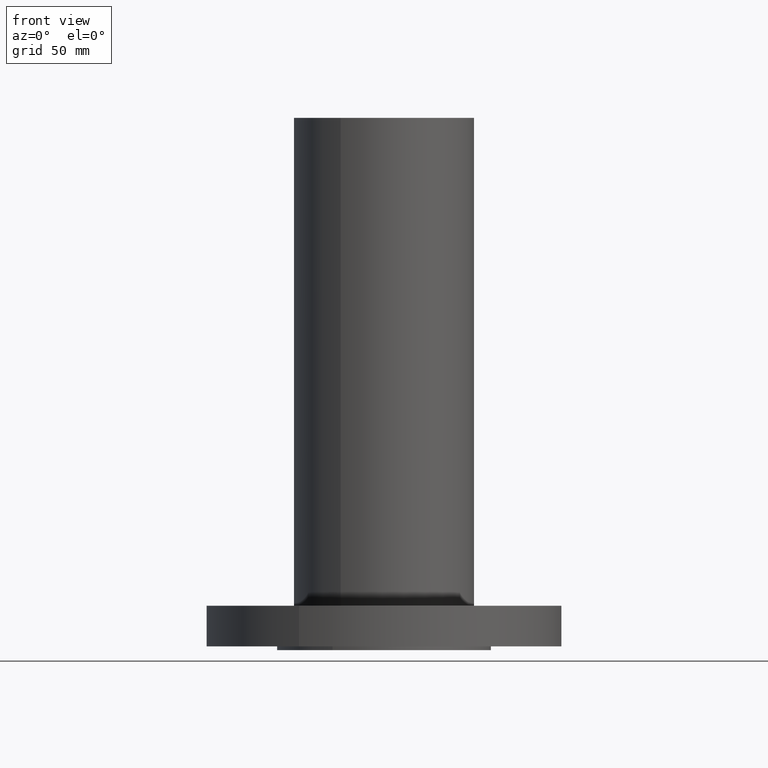
[diagram: clean part render]
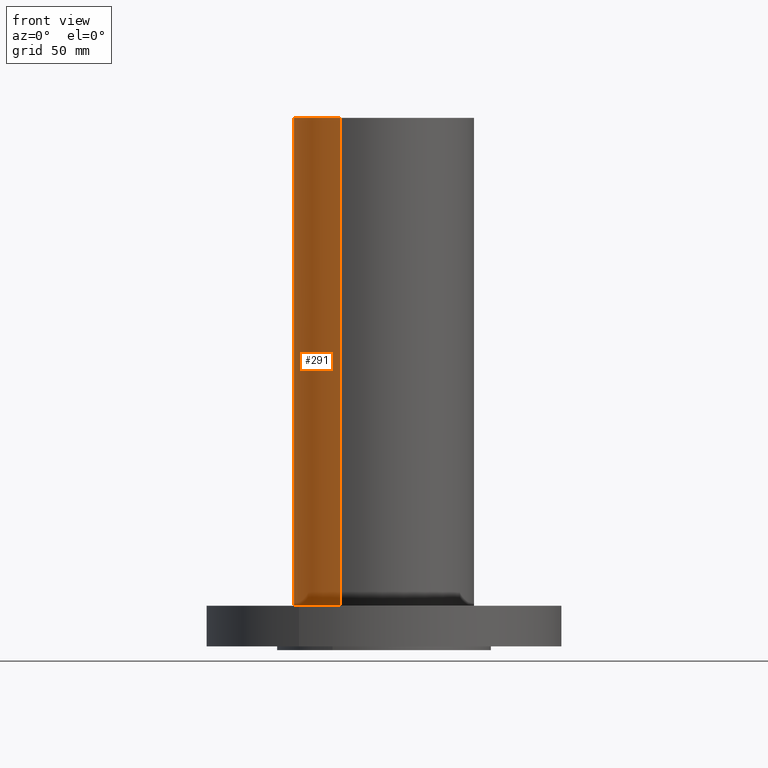
[diagram: same view with one face highlighted and labeled with its STEP entity id]
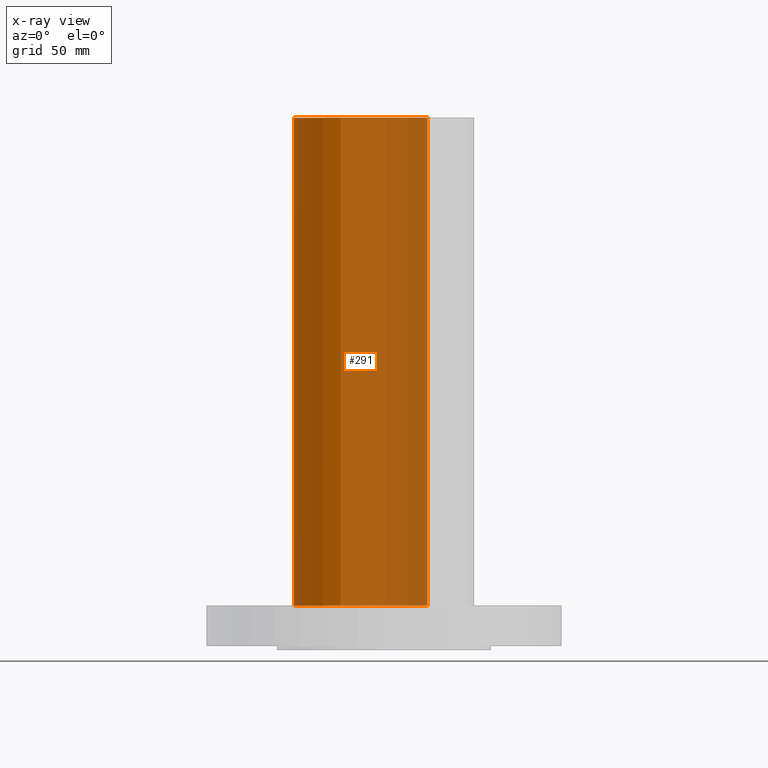
[diagram: x-ray of the same camera — body ghosted, the highlighted face saturated]
A machine part, front view. The second image highlights one B-rep face of the part: STEP entity #291.
The next image is the same camera in x-ray: the body ghosted, the highlighted face saturated — about 65% of this face is hidden behind the body in this view.
In plain terms, the highlighted cylindrical surface (partial cylindrical patch) has radius 38.862 mm, axis along (0, 0, -1).
Its self-contained STEP definition (entity closure, byte-faithful):
#238=AXIS2_PLACEMENT_3D('Cylinder Axis2P3D',#235,#236,#237) ;
#277=AXIS2_PLACEMENT_3D('Circle Axis2P3D',#275,#276,$) ;
#282=AXIS2_PLACEMENT_3D('Circle Axis2P3D',#280,#281,$) ;
#235=CARTESIAN_POINT('Axis2P3D Location',(0.,0.,4.43750000002)) ;
#244=CARTESIAN_POINT('Vertex',(0.733521074067,1.3427013197,0.687500000003)) ;
#246=CARTESIAN_POINT('Vertex',(-0.733521074067,-1.3427013197,0.687500000003)) ;
#249=CARTESIAN_POINT('Line Origine',(0.733521074067,1.3427013197,4.81250000002)) ;
#253=CARTESIAN_POINT('Vertex',(0.733521074067,1.3427013197,8.93750000004)) ;
#260=CARTESIAN_POINT('Vertex',(-0.733521074067,-1.3427013197,8.93750000004)) ;
#263=CARTESIAN_POINT('Line Origine',(-0.733521074067,-1.3427013197,4.81250000002)) ;
#275=CARTESIAN_POINT('Axis2P3D Location',(0.,0.,0.687500000003)) ;
#280=CARTESIAN_POINT('Axis2P3D Location',(0.,0.,8.93750000004)) ;
#236=DIRECTION('Axis2P3D Direction',(0.,0.,-0.0393700787402)) ;
#237=DIRECTION('Axis2P3D XDirection',(-0.0188750212049,-0.0345504945626,0.)) ;
#250=DIRECTION('Vector Direction',(0.,0.,-0.0393700787402)) ;
#264=DIRECTION('Vector Direction',(0.,0.,-0.0393700787402)) ;
#276=DIRECTION('Axis2P3D Direction',(0.,0.,-0.0393700787402)) ;
#281=DIRECTION('Axis2P3D Direction',(0.,0.,-0.0393700787402)) ;
#251=VECTOR('Line Direction',#250,0.0393700787402) ;
#265=VECTOR('Line Direction',#264,0.0393700787402) ;
#286=ORIENTED_EDGE('',*,*,#279,.F.) ;
#287=ORIENTED_EDGE('',*,*,#267,.T.) ;
#288=ORIENTED_EDGE('',*,*,#284,.T.) ;
#289=ORIENTED_EDGE('',*,*,#255,.F.) ;
#291=ADVANCED_FACE('PartBody',(#290),#239,.T.) ;
#278=CIRCLE('generated circle',#277,1.53000000001) ;
#283=CIRCLE('generated circle',#282,1.53000000001) ;
#239=CYLINDRICAL_SURFACE('generated cylinder',#238,1.53000000001) ;
#255=EDGE_CURVE('',#245,#254,#252,.F.) ;
#267=EDGE_CURVE('',#247,#261,#266,.F.) ;
#279=EDGE_CURVE('',#247,#245,#278,.T.) ;
#284=EDGE_CURVE('',#261,#254,#283,.T.) ;
#285=EDGE_LOOP('',(#286,#287,#288,#289)) ;
#290=FACE_OUTER_BOUND('',#285,.T.) ;
#252=LINE('Line',#249,#251) ;
#266=LINE('Line',#263,#265) ;
#245=VERTEX_POINT('',#244) ;
#247=VERTEX_POINT('',#246) ;
#254=VERTEX_POINT('',#253) ;
#261=VERTEX_POINT('',#260) ;